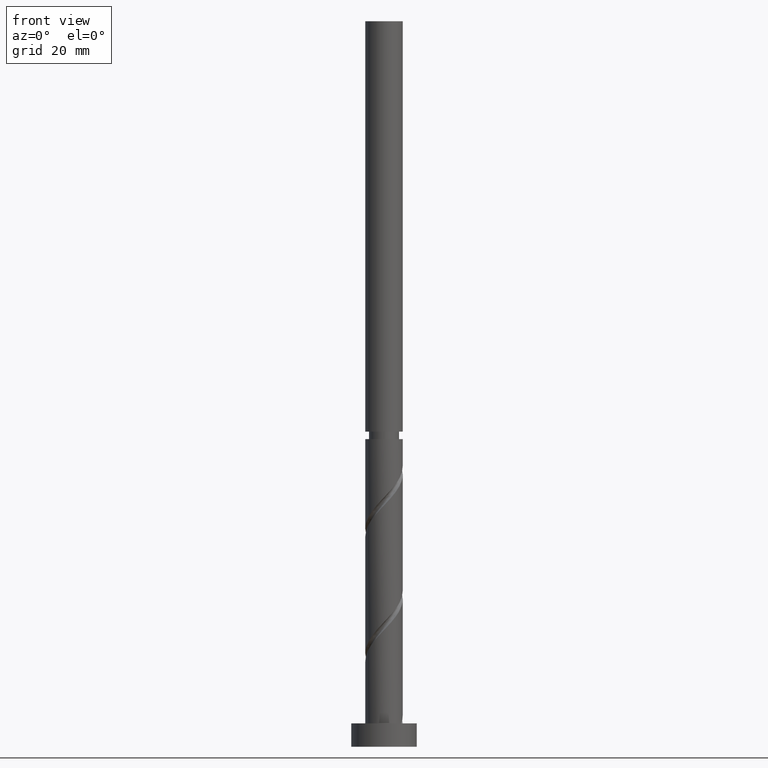
[diagram: clean part render]
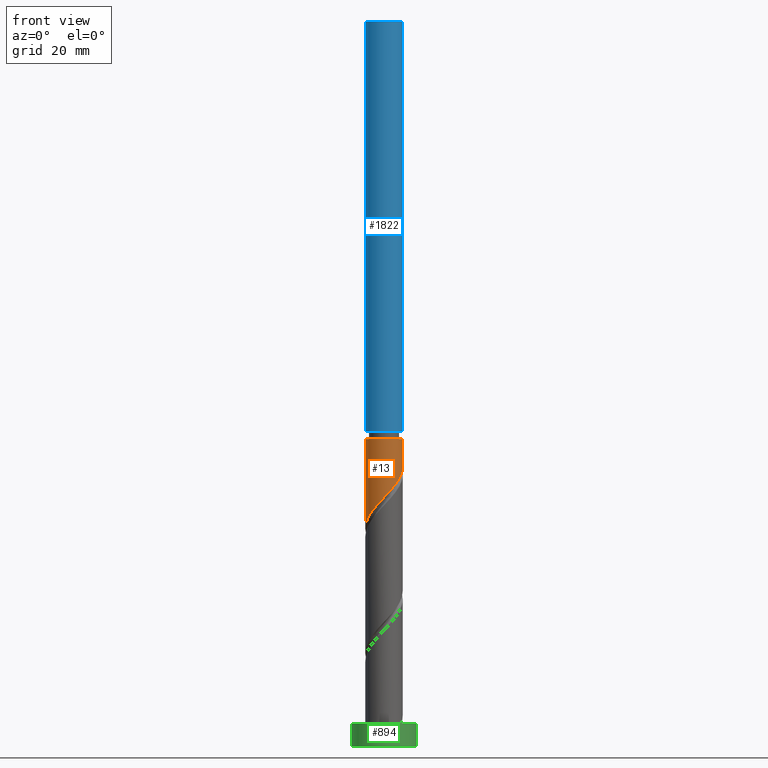
[diagram: same view with three faces highlighted in distinct colors, each labeled with its STEP entity id]
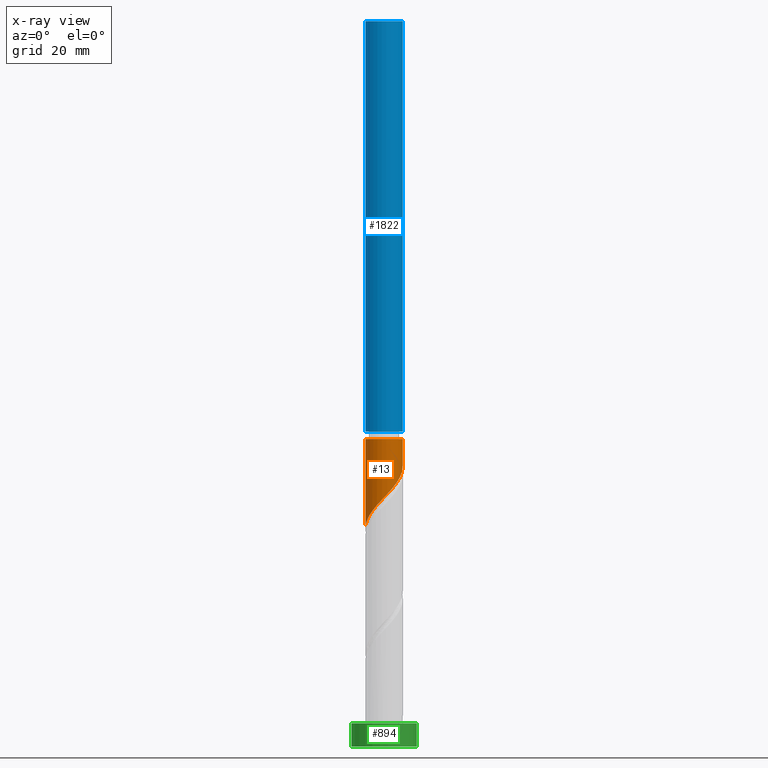
[diagram: x-ray of the same camera — body ghosted, the three highlighted faces saturated]
A machine part, front view with three faces highlighted in distinct colors.
The next image is the same camera in x-ray (body ghosted, the three faces saturated) — at least one of them is partly hidden behind the body in this view.
Their STEP definitions:

[orange] entity #13 — the highlighted cylindrical surface (edge-blend (fillet) strip) has radius 4 mm, axis along (-0, -0, -1).
#13 = ADVANCED_FACE ( 'NONE', ( #1602 ), #422, .T. ) ;
#58 = EDGE_CURVE ( 'NONE', #1955, #750, #114, .T. ) ;
#78 = CARTESIAN_POINT ( 'NONE',  ( 3.766818871216633280, -1.345762085751509129, 58.54767158463363330 ) ) ;
#114 = LINE ( 'NONE', #1643, #700 ) ;
#145 = VERTEX_POINT ( 'NONE', #1322 ) ;
#151 = DIRECTION ( 'NONE',  ( -0.000000000000000000, -0.000000000000000000, -1.000000000000000000 ) ) ;
#224 = CARTESIAN_POINT ( 'NONE',  ( 0.3406448590276050514, -3.985468740313750313, 53.69918673614879623 ) ) ;
#236 = CARTESIAN_POINT ( 'NONE',  ( -3.483800894132676351, -1.965485011400588178, 48.85070188766395205 ) ) ;
#241 = DIRECTION ( 'NONE',  ( -1.000000000000000000, 0.000000000000000000, 0.000000000000000000 ) ) ;
#326 = EDGE_CURVE ( 'NONE', #1687, #145, #447, .T. ) ;
#351 = ORIENTED_EDGE ( 'NONE', *, *, #326, .F. ) ;
#384 = CARTESIAN_POINT ( 'NONE',  ( -2.788941361696812837, -2.867369191613931889, 50.06282309978514178 ) ) ;
#422 = CYLINDRICAL_SURFACE ( 'NONE', #758, 4.000000000000000000 ) ;
#447 = LINE ( 'NONE', #1359, #1919 ) ;
#541 = CARTESIAN_POINT ( 'NONE',  ( -1.868138386609203172, -3.536956172823911171, 51.27494431190636703 ) ) ;
#547 = CARTESIAN_POINT ( 'NONE',  ( 0.000000000000000000, 0.000000000000000000, 155.2000000000000171 ) ) ;
#553 = CARTESIAN_POINT ( 'NONE',  ( -0.7959899496852962386, -3.920000000000000817, 52.48706552402758518 ) ) ;
#564 = CARTESIAN_POINT ( 'NONE',  ( -1.359600862145591282, -3.805553922997103822, 51.88100491796697611 ) ) ;
#688 = CARTESIAN_POINT ( 'NONE',  ( 2.896854998579485141, -2.817620677520438655, 56.72948976645182029 ) ) ;
#699 = CARTESIAN_POINT ( 'NONE',  ( -0.2323790372250011671, -4.034446077002897368, 53.09312613008817294 ) ) ;
#700 = VECTOR ( 'NONE', #1038, 1000.000000000000000 ) ;
#718 = CARTESIAN_POINT ( 'NONE',  ( 4.000000000000003553, 4.898587196589417759E-16, 65.82039885736091378 ) ) ;
#750 = VERTEX_POINT ( 'NONE', #1447 ) ;
#758 = AXIS2_PLACEMENT_3D ( 'NONE', #547, #1312, #241 ) ;
#766 = CARTESIAN_POINT ( 'NONE',  ( -4.000000000000000888, -0.4581157095404932988, 47.15581328963310881 ) ) ;
#801 = DIRECTION ( 'NONE',  ( -1.000000000000000000, 0.000000000000000000, 0.000000000000000000 ) ) ;
#827 = EDGE_CURVE ( 'NONE', #145, #750, #1584, .T. ) ;
#830 = CARTESIAN_POINT ( 'NONE',  ( 4.000000000000001776, 2.049084436379041422E-15, 60.00318666999515926 ) ) ;
#850 = CARTESIAN_POINT ( 'NONE',  ( -3.766394975944543866, -1.464590062224029543, 48.24464128160334297 ) ) ;
#968 = CARTESIAN_POINT ( 'NONE',  ( 0.000000000000000000, 0.000000000000000000, 65.82039885736091378 ) ) ;
#1000 = CARTESIAN_POINT ( 'NONE',  ( -3.201206812320809281, -2.466379960577146591, 49.45676249372453270 ) ) ;
#1011 = CARTESIAN_POINT ( 'NONE',  ( 3.960310248029102365, -0.8041752946599102225, 59.15373219069423527 ) ) ;
#1038 = DIRECTION ( 'NONE',  ( -0.000000000000000000, -0.000000000000000000, -1.000000000000000000 ) ) ;
#1059 = AXIS2_PLACEMENT_3D ( 'NONE', #968, #1285, #801 ) ;
#1179 = CARTESIAN_POINT ( 'NONE',  ( 4.000000000000001776, -0.1151021060952861358, 59.88108866527692697 ) ) ;
#1221 = EDGE_LOOP ( 'NONE', ( #351, #1811, #1504, #1234 ) ) ;
#1234 = ORIENTED_EDGE ( 'NONE', *, *, #827, .F. ) ;
#1285 = DIRECTION ( 'NONE',  ( -0.000000000000000000, -0.000000000000000000, -1.000000000000000000 ) ) ;
#1298 = CARTESIAN_POINT ( 'NONE',  ( 2.441275768804709312, -3.168623142730448095, 56.12342916039121121 ) ) ;
#1312 = DIRECTION ( 'NONE',  ( -0.000000000000000000, -0.000000000000000000, -1.000000000000000000 ) ) ;
#1322 = CARTESIAN_POINT ( 'NONE',  ( 4.000000000000001776, 2.049084436379041027E-15, 60.00318666999515216 ) ) ;
#1327 = CARTESIAN_POINT ( 'NONE',  ( 3.573327494404165527, -1.887348876843107037, 57.94161097857303844 ) ) ;
#1331 = CARTESIAN_POINT ( 'NONE',  ( -4.000000000000003553, 0.000000000000000000, 65.82039885736091378 ) ) ;
#1359 = CARTESIAN_POINT ( 'NONE',  ( 4.000000000000000000, 4.898587196589412829E-16, 155.2000000000000171 ) ) ;
#1438 = CARTESIAN_POINT ( 'NONE',  ( 3.235091246491825334, -2.352484777181773179, 57.33555037251242936 ) ) ;
#1447 = CARTESIAN_POINT ( 'NONE',  ( -4.000000000000001776, 2.662314085222403279E-15, 46.66985333666180935 ) ) ;
#1481 = CARTESIAN_POINT ( 'NONE',  ( -4.000000000000001776, 2.662314085222403279E-15, 46.66985333666180935 ) ) ;
#1504 = ORIENTED_EDGE ( 'NONE', *, *, #58, .T. ) ;
#1584 =( BOUNDED_CURVE ( )  B_SPLINE_CURVE ( 2, ( #830, #1179, #1616, #1011, #78, #1327, #1438, #688, #1298, #1883, #1598, #1913, #224, #699, #553, #564, #541, #1750, #384, #1000, #236, #850, #1800, #766, #1481 ),
 .UNSPECIFIED., .F., .T. ) 
 B_SPLINE_CURVE_WITH_KNOTS ( ( 3, 2, 2, 2, 2, 2, 2, 2, 2, 2, 2, 2, 3 ),
 ( 0.3045252162417512731, 0.3068181818181818232, 0.3181818181818181768, 0.3295454545454545303, 0.3409090909090908839, 0.3522727272727272929, 0.3636363636363636465, 0.3750000000000000000, 0.3863636363636363535, 0.3977272727272727071, 0.4090909090909091161, 0.4204545454545454697, 0.4295252162417513286 ),
 .UNSPECIFIED. ) 
 CURVE ( )  GEOMETRIC_REPRESENTATION_ITEM ( )  RATIONAL_B_SPLINE_CURVE ( ( 0.9061101570135461358, 0.9072237824201283551, 0.9090909090909058410, 0.8998376744372084124, 0.9090909090909058410, 0.8998376744372084124, 0.9090909090909058410, 0.8998376744372084124, 0.9090909090909058410, 0.8998376744372084124, 0.9090909090909058410, 0.8998376744372084124, 0.9090909090909058410, 0.8998376744372084124, 0.9090909090909058410, 0.8998376744372084124, 0.9090909090909058410, 0.8998376744372084124, 0.9090909090909058410, 0.8998376744372084124, 0.9090909090909058410, 0.8998376744372084124, 0.9090909090909058410, 0.9017048011079858982, 0.9061101570135461358 ) ) 
 REPRESENTATION_ITEM ( '' )  );
#1595 = EDGE_CURVE ( 'NONE', #1687, #1955, #1692, .T. ) ;
#1598 = CARTESIAN_POINT ( 'NONE',  ( 1.449682647155073445, -3.728058505782529508, 54.91130794827000017 ) ) ;
#1602 = FACE_OUTER_BOUND ( 'NONE', #1221, .T. ) ;
#1616 = CARTESIAN_POINT ( 'NONE',  ( 3.993381233129881913, -0.2300137536889537704, 59.75979279675485856 ) ) ;
#1643 = CARTESIAN_POINT ( 'NONE',  ( -4.000000000000000000, 0.000000000000000000, 155.2000000000000171 ) ) ;
#1687 = VERTEX_POINT ( 'NONE', #718 ) ;
#1692 = CIRCLE ( 'NONE', #1059, 4.000000000000003553 ) ;
#1750 = CARTESIAN_POINT ( 'NONE',  ( -2.376675911072814174, -3.268358422650717632, 50.66888370584575085 ) ) ;
#1800 = CARTESIAN_POINT ( 'NONE',  ( -3.896423597087600665, -0.9043689247530166675, 47.63858067554274101 ) ) ;
#1811 = ORIENTED_EDGE ( 'NONE', *, *, #1595, .T. ) ;
#1883 = CARTESIAN_POINT ( 'NONE',  ( 1.985696539029935925, -3.519625607940455758, 55.51736855433060214 ) ) ;
#1913 = CARTESIAN_POINT ( 'NONE',  ( 0.9136687552802127410, -3.936491403624601926, 54.30524734220938399 ) ) ;
#1919 = VECTOR ( 'NONE', #151, 1000.000000000000000 ) ;
#1955 = VERTEX_POINT ( 'NONE', #1331 ) ;

[blue] entity #1822 — the highlighted cylindrical surface (edge-blend (fillet) strip) has radius 4 mm, axis along (-0, -0, -1).
#2 = CARTESIAN_POINT ( 'NONE',  ( 0.000000000000000000, 0.000000000000000000, 67.42039885736089389 ) ) ;
#3 = CIRCLE ( 'NONE', #377, 4.000000000000003553 ) ;
#5 = CARTESIAN_POINT ( 'NONE',  ( 0.000000000000000000, 0.000000000000000000, 155.2000000000000171 ) ) ;
#34 = VECTOR ( 'NONE', #1289, 1000.000000000000000 ) ;
#88 = LINE ( 'NONE', #1138, #34 ) ;
#155 = ORIENTED_EDGE ( 'NONE', *, *, #629, .T. ) ;
#197 = EDGE_CURVE ( 'NONE', #706, #492, #566, .T. ) ;
#268 = CARTESIAN_POINT ( 'NONE',  ( 4.000000000000000000, 4.898587196589412829E-16, 155.2000000000000171 ) ) ;
#290 = DIRECTION ( 'NONE',  ( 0.000000000000000000, 0.000000000000000000, 1.000000000000000000 ) ) ;
#296 = FACE_OUTER_BOUND ( 'NONE', #1302, .T. ) ;
#334 = LINE ( 'NONE', #800, #583 ) ;
#377 = AXIS2_PLACEMENT_3D ( 'NONE', #2, #917, #465 ) ;
#465 = DIRECTION ( 'NONE',  ( -1.000000000000000000, 0.000000000000000000, 0.000000000000000000 ) ) ;
#492 = VERTEX_POINT ( 'NONE', #268 ) ;
#566 = CIRCLE ( 'NONE', #1681, 4.000000000000000000 ) ;
#583 = VECTOR ( 'NONE', #1410, 1000.000000000000000 ) ;
#606 = DIRECTION ( 'NONE',  ( -1.000000000000000000, 0.000000000000000000, 0.000000000000000000 ) ) ;
#629 = EDGE_CURVE ( 'NONE', #706, #919, #88, .T. ) ;
#706 = VERTEX_POINT ( 'NONE', #1733 ) ;
#744 = DIRECTION ( 'NONE',  ( -0.000000000000000000, -0.000000000000000000, -1.000000000000000000 ) ) ;
#800 = CARTESIAN_POINT ( 'NONE',  ( 4.000000000000000000, 4.898587196589412829E-16, 155.2000000000000171 ) ) ;
#815 = ORIENTED_EDGE ( 'NONE', *, *, #197, .F. ) ;
#917 = DIRECTION ( 'NONE',  ( -0.000000000000000000, -0.000000000000000000, -1.000000000000000000 ) ) ;
#919 = VERTEX_POINT ( 'NONE', #1033 ) ;
#987 = AXIS2_PLACEMENT_3D ( 'NONE', #1950, #744, #606 ) ;
#1033 = CARTESIAN_POINT ( 'NONE',  ( -4.000000000000003553, 0.000000000000000000, 67.42039885736089389 ) ) ;
#1075 = CYLINDRICAL_SURFACE ( 'NONE', #987, 4.000000000000000000 ) ;
#1138 = CARTESIAN_POINT ( 'NONE',  ( -4.000000000000000000, 0.000000000000000000, 155.2000000000000171 ) ) ;
#1230 = EDGE_CURVE ( 'NONE', #492, #1293, #334, .T. ) ;
#1289 = DIRECTION ( 'NONE',  ( -0.000000000000000000, -0.000000000000000000, -1.000000000000000000 ) ) ;
#1293 = VERTEX_POINT ( 'NONE', #1510 ) ;
#1302 = EDGE_LOOP ( 'NONE', ( #1666, #815, #155, #1392 ) ) ;
#1340 = EDGE_CURVE ( 'NONE', #1293, #919, #3, .T. ) ;
#1392 = ORIENTED_EDGE ( 'NONE', *, *, #1340, .F. ) ;
#1410 = DIRECTION ( 'NONE',  ( -0.000000000000000000, -0.000000000000000000, -1.000000000000000000 ) ) ;
#1510 = CARTESIAN_POINT ( 'NONE',  ( 4.000000000000003553, 4.898587196589417759E-16, 67.42039885736089389 ) ) ;
#1529 = DIRECTION ( 'NONE',  ( 1.000000000000000000, 0.000000000000000000, 0.000000000000000000 ) ) ;
#1666 = ORIENTED_EDGE ( 'NONE', *, *, #1230, .F. ) ;
#1681 = AXIS2_PLACEMENT_3D ( 'NONE', #5, #290, #1529 ) ;
#1733 = CARTESIAN_POINT ( 'NONE',  ( -4.000000000000000000, 0.000000000000000000, 155.2000000000000171 ) ) ;
#1822 = ADVANCED_FACE ( 'NONE', ( #296 ), #1075, .T. ) ;
#1950 = CARTESIAN_POINT ( 'NONE',  ( 0.000000000000000000, 0.000000000000000000, 155.2000000000000171 ) ) ;

[green] entity #894 — the highlighted cylindrical surface (edge-blend (fillet) strip) has radius 7 mm, axis along (-0, -0, -1).
#184 = CARTESIAN_POINT ( 'NONE',  ( 7.000000000000000000, 8.572527594031473190E-16, 0.000000000000000000 ) ) ;
#244 = CARTESIAN_POINT ( 'NONE',  ( 0.000000000000000000, 0.000000000000000000, 0.000000000000000000 ) ) ;
#409 = AXIS2_PLACEMENT_3D ( 'NONE', #1125, #1708, #944 ) ;
#416 = FACE_OUTER_BOUND ( 'NONE', #1114, .T. ) ;
#667 = EDGE_CURVE ( 'NONE', #1821, #1074, #1308, .T. ) ;
#738 = LINE ( 'NONE', #1809, #1057 ) ;
#771 = AXIS2_PLACEMENT_3D ( 'NONE', #1186, #1952, #1936 ) ;
#772 = VERTEX_POINT ( 'NONE', #1770 ) ;
#788 = ORIENTED_EDGE ( 'NONE', *, *, #1535, .F. ) ;
#894 = ADVANCED_FACE ( 'NONE', ( #416 ), #1067, .T. ) ;
#915 = DIRECTION ( 'NONE',  ( -0.000000000000000000, -0.000000000000000000, -1.000000000000000000 ) ) ;
#921 = EDGE_CURVE ( 'NONE', #1674, #772, #738, .T. ) ;
#944 = DIRECTION ( 'NONE',  ( 1.000000000000000000, 0.000000000000000000, 0.000000000000000000 ) ) ;
#1027 = CIRCLE ( 'NONE', #1503, 7.000000000000000000 ) ;
#1057 = VECTOR ( 'NONE', #915, 1000.000000000000000 ) ;
#1067 = CYLINDRICAL_SURFACE ( 'NONE', #771, 7.000000000000000000 ) ;
#1074 = VERTEX_POINT ( 'NONE', #184 ) ;
#1114 = EDGE_LOOP ( 'NONE', ( #1507, #788, #1356, #1131 ) ) ;
#1125 = CARTESIAN_POINT ( 'NONE',  ( 0.000000000000000000, 0.000000000000000000, 5.000000000000000000 ) ) ;
#1131 = ORIENTED_EDGE ( 'NONE', *, *, #1736, .T. ) ;
#1165 = DIRECTION ( 'NONE',  ( 0.000000000000000000, 0.000000000000000000, 1.000000000000000000 ) ) ;
#1186 = CARTESIAN_POINT ( 'NONE',  ( 0.000000000000000000, 0.000000000000000000, 5.000000000000000000 ) ) ;
#1214 = CARTESIAN_POINT ( 'NONE',  ( 7.000000000000000000, 8.572527594031473190E-16, 5.000000000000000000 ) ) ;
#1308 = LINE ( 'NONE', #1588, #1656 ) ;
#1326 = DIRECTION ( 'NONE',  ( 1.000000000000000000, 0.000000000000000000, 0.000000000000000000 ) ) ;
#1354 = CIRCLE ( 'NONE', #409, 7.000000000000000000 ) ;
#1356 = ORIENTED_EDGE ( 'NONE', *, *, #921, .T. ) ;
#1418 = CARTESIAN_POINT ( 'NONE',  ( -7.000000000000000000, 0.000000000000000000, 5.000000000000000000 ) ) ;
#1503 = AXIS2_PLACEMENT_3D ( 'NONE', #244, #1165, #1326 ) ;
#1507 = ORIENTED_EDGE ( 'NONE', *, *, #667, .F. ) ;
#1535 = EDGE_CURVE ( 'NONE', #1674, #1821, #1354, .T. ) ;
#1588 = CARTESIAN_POINT ( 'NONE',  ( 7.000000000000000000, 8.572527594031473190E-16, 5.000000000000000000 ) ) ;
#1607 = DIRECTION ( 'NONE',  ( -0.000000000000000000, -0.000000000000000000, -1.000000000000000000 ) ) ;
#1656 = VECTOR ( 'NONE', #1607, 1000.000000000000000 ) ;
#1674 = VERTEX_POINT ( 'NONE', #1418 ) ;
#1708 = DIRECTION ( 'NONE',  ( 0.000000000000000000, 0.000000000000000000, 1.000000000000000000 ) ) ;
#1736 = EDGE_CURVE ( 'NONE', #772, #1074, #1027, .T. ) ;
#1770 = CARTESIAN_POINT ( 'NONE',  ( -7.000000000000000000, 0.000000000000000000, 0.000000000000000000 ) ) ;
#1809 = CARTESIAN_POINT ( 'NONE',  ( -7.000000000000000000, 0.000000000000000000, 5.000000000000000000 ) ) ;
#1821 = VERTEX_POINT ( 'NONE', #1214 ) ;
#1936 = DIRECTION ( 'NONE',  ( -1.000000000000000000, 0.000000000000000000, 0.000000000000000000 ) ) ;
#1952 = DIRECTION ( 'NONE',  ( -0.000000000000000000, -0.000000000000000000, -1.000000000000000000 ) ) ;